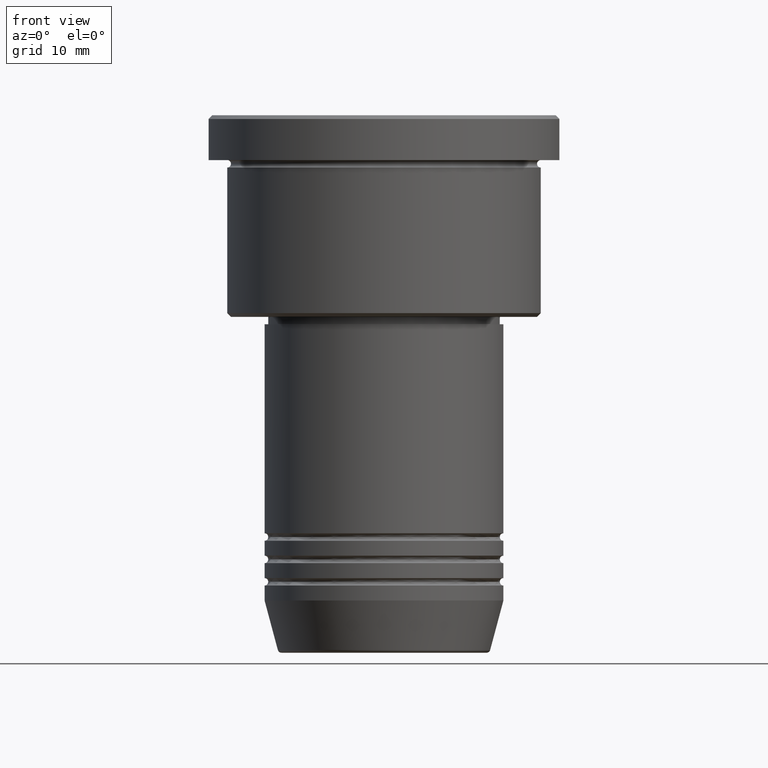
[diagram: clean part render]
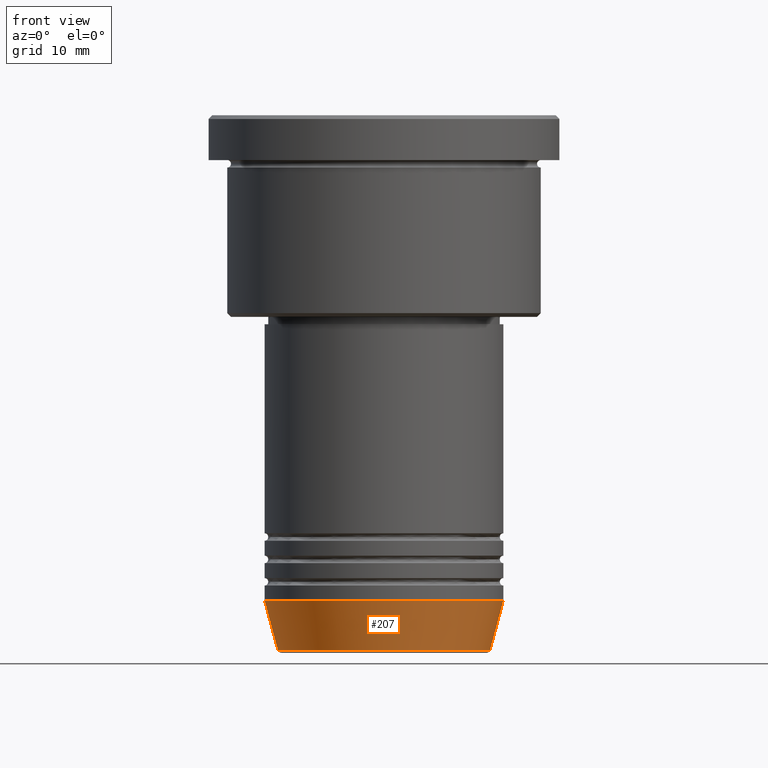
[diagram: same view with one face highlighted and labeled with its STEP entity id]
A machine part, front view. The second image highlights one B-rep face of the part: STEP entity #207.
In plain terms, the highlighted conical surface has half-angle 15 deg.
Its self-contained STEP definition (entity closure, byte-faithful):
#10 = ORIENTED_EDGE ( 'NONE', *, *, #503, .T. ) ;
#32 = EDGE_LOOP ( 'NONE', ( #779, #770, #10, #504 ) ) ;
#76 = AXIS2_PLACEMENT_3D ( 'NONE', #479, #549, #846 ) ;
#78 = AXIS2_PLACEMENT_3D ( 'NONE', #492, #1043, #1123 ) ;
#94 = AXIS2_PLACEMENT_3D ( 'NONE', #660, #1033, #736 ) ;
#132 = VERTEX_POINT ( 'NONE', #471 ) ;
#153 = DIRECTION ( 'NONE',  ( -0.2588190451025213501, 3.169619151431772337E-17, 0.9659258262890680902 ) ) ;
#201 = EDGE_CURVE ( 'NONE', #132, #217, #742, .T. ) ;
#207 = ADVANCED_FACE ( 'NONE', ( #945 ), #418, .T. ) ;
#217 = VERTEX_POINT ( 'NONE', #1124 ) ;
#291 = CARTESIAN_POINT ( 'NONE',  ( -14.22365507213718949, 1.850665122131323337E-15, -71.62940952255127058 ) ) ;
#334 = CARTESIAN_POINT ( 'NONE',  ( 16.00000000000000000, 0.000000000000000000, -65.00000000000000000 ) ) ;
#378 = EDGE_CURVE ( 'NONE', #975, #132, #778, .T. ) ;
#417 = CARTESIAN_POINT ( 'NONE',  ( -16.00000000000000000, 1.959434878635765131E-15, -65.00000000000000000 ) ) ;
#418 = CONICAL_SURFACE ( 'NONE', #94, 16.00000000000000000, 0.2617993877991500740 ) ;
#465 = CARTESIAN_POINT ( 'NONE',  ( 14.22365507213718949, 0.000000000000000000, -71.62940952255127058 ) ) ;
#471 = CARTESIAN_POINT ( 'NONE',  ( -16.00000000000000000, 1.959434878635765131E-15, -65.00000000000000000 ) ) ;
#479 = CARTESIAN_POINT ( 'NONE',  ( 0.000000000000000000, 0.000000000000000000, -65.00000000000000000 ) ) ;
#492 = CARTESIAN_POINT ( 'NONE',  ( 0.000000000000000000, 0.000000000000000000, -71.62940952255127058 ) ) ;
#503 = EDGE_CURVE ( 'NONE', #573, #217, #988, .T. ) ;
#504 = ORIENTED_EDGE ( 'NONE', *, *, #201, .F. ) ;
#549 = DIRECTION ( 'NONE',  ( -0.000000000000000000, -0.000000000000000000, 1.000000000000000000 ) ) ;
#573 = VERTEX_POINT ( 'NONE', #465 ) ;
#634 = CIRCLE ( 'NONE', #78, 14.22365507213718949 ) ;
#660 = CARTESIAN_POINT ( 'NONE',  ( 0.000000000000000000, 0.000000000000000000, -65.00000000000000000 ) ) ;
#736 = DIRECTION ( 'NONE',  ( 1.000000000000000000, 0.000000000000000000, 0.000000000000000000 ) ) ;
#742 = CIRCLE ( 'NONE', #76, 16.00000000000000000 ) ;
#770 = ORIENTED_EDGE ( 'NONE', *, *, #804, .T. ) ;
#778 = LINE ( 'NONE', #417, #959 ) ;
#779 = ORIENTED_EDGE ( 'NONE', *, *, #378, .F. ) ;
#804 = EDGE_CURVE ( 'NONE', #975, #573, #634, .T. ) ;
#846 = DIRECTION ( 'NONE',  ( 1.000000000000000000, 0.000000000000000000, 0.000000000000000000 ) ) ;
#945 = FACE_OUTER_BOUND ( 'NONE', #32, .T. ) ;
#959 = VECTOR ( 'NONE', #153, 1000.000000000000000 ) ;
#975 = VERTEX_POINT ( 'NONE', #291 ) ;
#988 = LINE ( 'NONE', #334, #1108 ) ;
#1033 = DIRECTION ( 'NONE',  ( -0.000000000000000000, -0.000000000000000000, 1.000000000000000000 ) ) ;
#1043 = DIRECTION ( 'NONE',  ( -0.000000000000000000, -0.000000000000000000, 1.000000000000000000 ) ) ;
#1108 = VECTOR ( 'NONE', #1157, 1000.000000000000000 ) ;
#1123 = DIRECTION ( 'NONE',  ( 1.000000000000000000, 0.000000000000000000, 0.000000000000000000 ) ) ;
#1124 = CARTESIAN_POINT ( 'NONE',  ( 16.00000000000000000, 0.000000000000000000, -65.00000000000000000 ) ) ;
#1157 = DIRECTION ( 'NONE',  ( 0.2588190451025213501, 0.000000000000000000, 0.9659258262890680902 ) ) ;